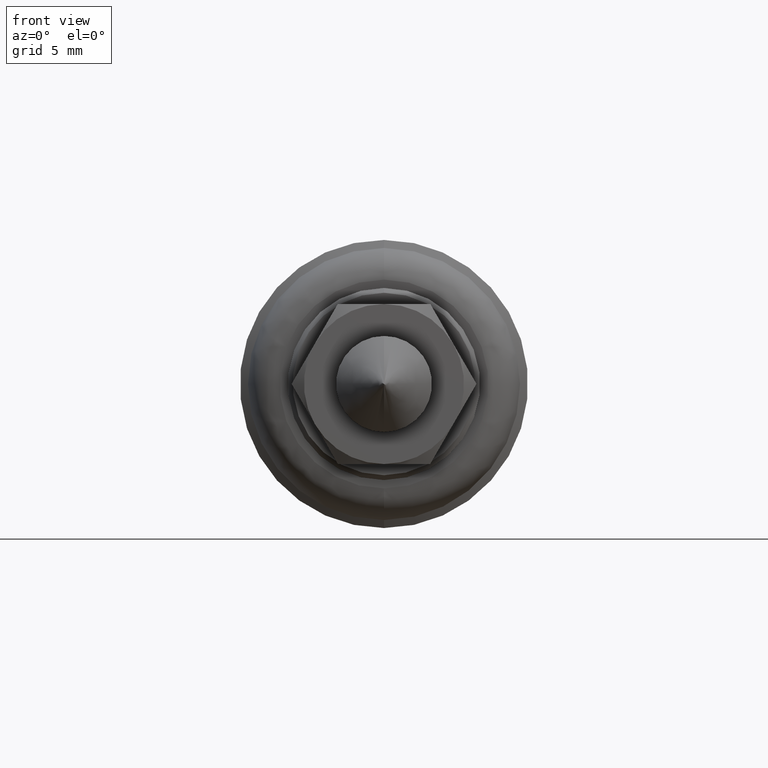
[diagram: clean part render]
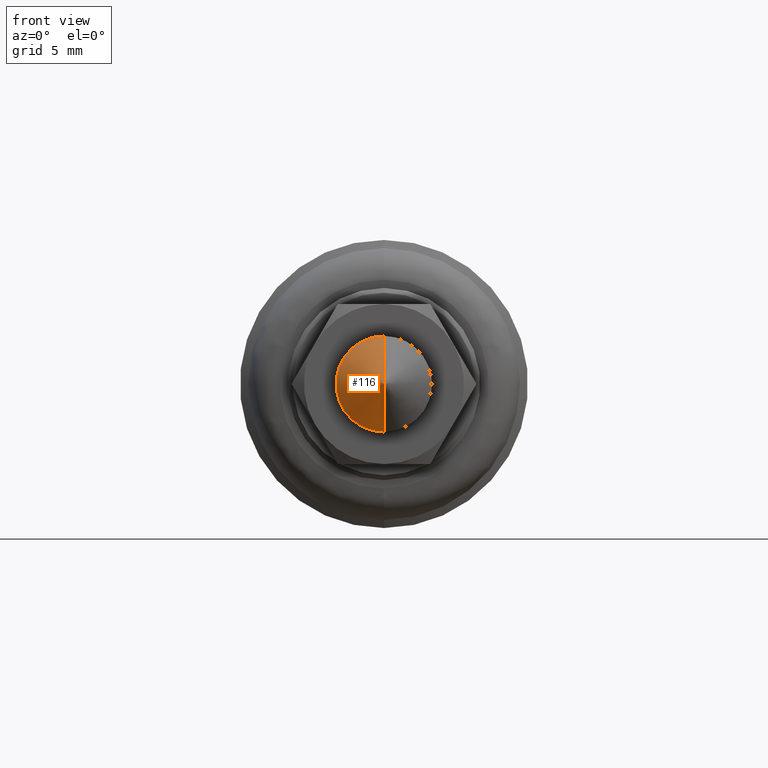
[diagram: same view with one face highlighted and labeled with its STEP entity id]
A machine part, front view. The second image highlights one B-rep face of the part: STEP entity #116.
In plain terms, the highlighted face is a freeform B-spline surface patch.
Its self-contained STEP definition (entity closure, byte-faithful):
#116=ADVANCED_FACE('',(#198),#197,.T.);
#197=( BOUNDED_SURFACE() B_SPLINE_SURFACE( 2,1,((#602,#603),(#604,#605),(#606,#607),(#608,#609),(#610,#611)), .UNSPECIFIED.,.F.,.F.,.F.) B_SPLINE_SURFACE_WITH_KNOTS((3,2,3),(2,2),(0.00000000000E+00,5.00000000000E-01,1.00000000000E+00),(0.00000000000E+00,1.00000000000E+00), .UNSPECIFIED. ) GEOMETRIC_REPRESENTATION_ITEM() RATIONAL_B_SPLINE_SURFACE(((1.00000000000E+00,1.00000000000E+00),(7.07106781187E-01,7.07106781187E-01),(1.00000000000E+00,1.00000000000E+00),(7.07106781187E-01,7.07106781187E-01),(1.00000000000E+00,1.00000000000E+00))) REPRESENTATION_ITEM('') SURFACE() );
#198=FACE_OUTER_BOUND('',#612,.T.);
#602=CARTESIAN_POINT('',(0.00000000000E+00,-1.13686837722E-13,0.00000000000E+00));
#603=CARTESIAN_POINT('',(-7.34788079488E-16,3.00000000000E+00,-3.00000000000E+00));
#604=CARTESIAN_POINT('',(0.00000000000E+00,-1.13686837722E-13,0.00000000000E+00));
#605=CARTESIAN_POINT('',(-3.00000000000E+00,3.00000000000E+00,-3.00000000000E+00));
#606=CARTESIAN_POINT('',(0.00000000000E+00,-1.13686837722E-13,0.00000000000E+00));
#607=CARTESIAN_POINT('',(-3.00000000000E+00,3.00000000000E+00,5.51091059616E-16));
#608=CARTESIAN_POINT('',(0.00000000000E+00,-1.13686837722E-13,0.00000000000E+00));
#609=CARTESIAN_POINT('',(-3.00000000000E+00,3.00000000000E+00,3.00000000000E+00));
#610=CARTESIAN_POINT('',(0.00000000000E+00,-1.13686837722E-13,0.00000000000E+00));
#611=CARTESIAN_POINT('',(3.67394039744E-16,3.00000000000E+00,3.00000000000E+00));
#612=EDGE_LOOP('',(#952,#953,#954));
#952=ORIENTED_EDGE('',*,*,#1128,.F.);
#953=ORIENTED_EDGE('',*,*,#1129,.F.);
#954=ORIENTED_EDGE('',*,*,#1130,.T.);
#1128=EDGE_CURVE('',#1300,#1301,#1302,.T.);
#1129=EDGE_CURVE('',#1308,#1300,#1309,.T.);
#1130=EDGE_CURVE('',#1308,#1301,#1315,.T.);
#1300=VERTEX_POINT('',#1853);
#1301=VERTEX_POINT('',#1854);
#1302=CIRCLE('',#1858,3.00000000000E+00);
#1308=VERTEX_POINT('',#1859);
#1309=(BOUNDED_CURVE() B_SPLINE_CURVE(1,(#1860,#1861),.UNSPECIFIED.,.F.,.F.) B_SPLINE_CURVE_WITH_KNOTS((2,2),(0.00000000000E+00,1.00000000000E+00),.UNSPECIFIED.) CURVE() GEOMETRIC_REPRESENTATION_ITEM() RATIONAL_B_SPLINE_CURVE((1.00000000000E+00,1.00000000000E+00)) REPRESENTATION_ITEM('') );
#1315=(BOUNDED_CURVE() B_SPLINE_CURVE(1,(#1862,#1863),.UNSPECIFIED.,.F.,.F.) B_SPLINE_CURVE_WITH_KNOTS((2,2),(0.00000000000E+00,1.00000000000E+00),.UNSPECIFIED.) CURVE() GEOMETRIC_REPRESENTATION_ITEM() RATIONAL_B_SPLINE_CURVE((7.50000000000E-01,7.50000000000E-01)) REPRESENTATION_ITEM('') );
#1853=CARTESIAN_POINT('',(-1.48029736617E-16,3.00000000000E+00,-3.00000000000E+00));
#1854=CARTESIAN_POINT('',(0.00000000000E+00,3.00000000000E+00,3.00000000000E+00));
#1855=CARTESIAN_POINT('',(0.00000000000E+00,3.00000000000E+00,0.00000000000E+00));
#1856=DIRECTION('',(0.00000000000E+00,1.00000000000E+00,-0.00000000000E+00));
#1857=DIRECTION('',(-1.22460635382E-16,0.00000000000E+00,1.00000000000E+00));
#1858=AXIS2_PLACEMENT_3D('',#1855,#1856,#1857);
#1859=CARTESIAN_POINT('',(0.00000000000E+00,0.00000000000E+00,-1.13686837722E-13));
#1860=CARTESIAN_POINT('',(0.00000000000E+00,-1.13686837722E-13,0.00000000000E+00));
#1861=CARTESIAN_POINT('',(-7.34763812293E-16,3.00000000000E+00,-3.00000000000E+00));
#1862=CARTESIAN_POINT('',(0.00000000000E+00,-1.13686837722E-13,0.00000000000E+00));
#1863=CARTESIAN_POINT('',(1.03620815632E-15,3.00000000000E+00,3.00000000000E+00));